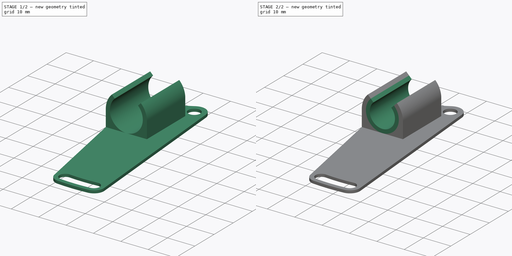
[diagram: build sequence overview — one tinted view per stage of 2, left to right]
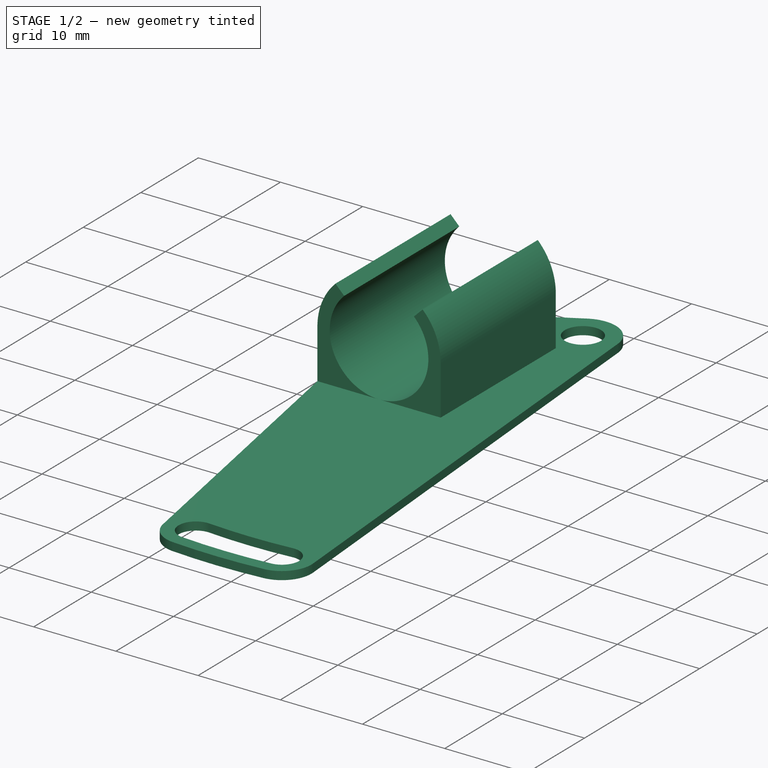
[diagram: stage 1 of 2 — iso view after this stage's code; geometry added in this stage tinted green]
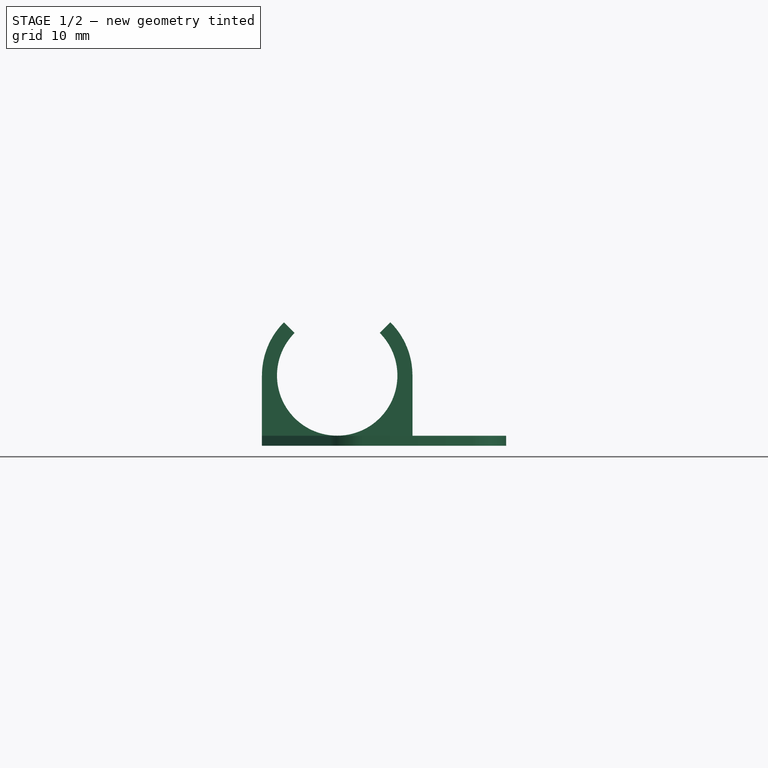
[diagram: stage 1 of 2 — front view after this stage's code; geometry added in this stage tinted green]
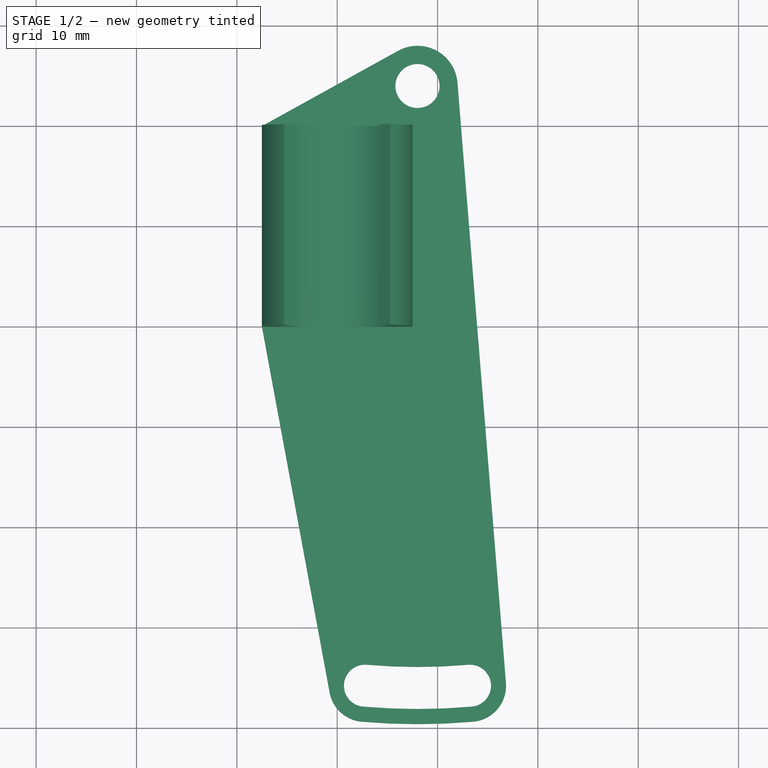
[diagram: stage 1 of 2 — top view after this stage's code; geometry added in this stage tinted green]
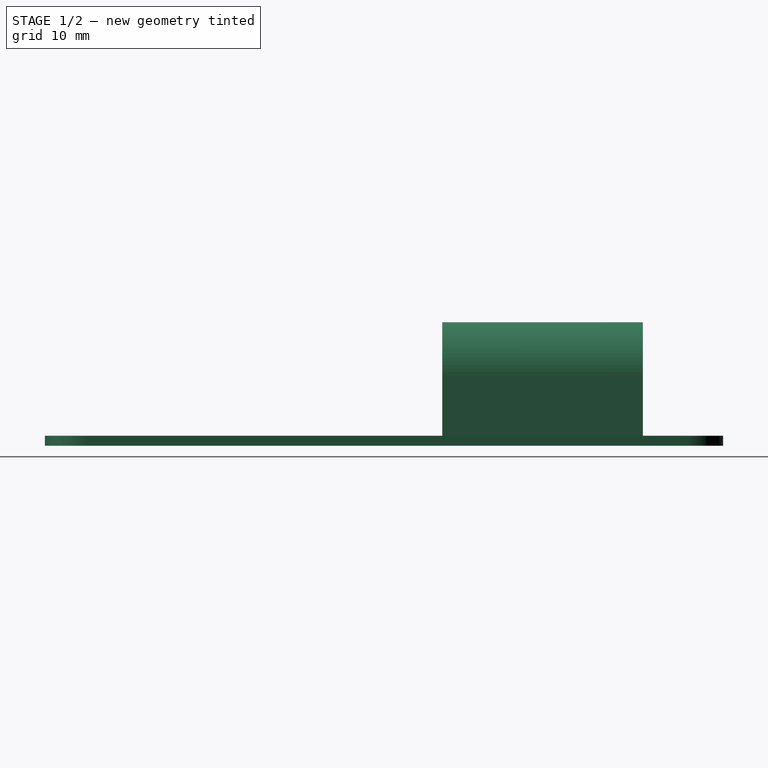
[diagram: stage 1 of 2 — right view after this stage's code; geometry added in this stage tinted green]
FCSTD DOCUMENT  (FreeCAD 0.16R6698 (Git))
Label: BetterLaserSideMount
License: All rights reserved
LicenseURL: http://en.wikipedia.org/wiki/All_rights_reserved
objects: Sketcher::SketchObject×3, PartDesign::Pad×3
note: 9 computed .brp shape members not serialized (recipe doc carries the construction recipe); baked Part::Feature solids carry a one-line shape summary decoded from their .brp

FEATURE [Sketcher::SketchObject] Sketch
  Placement = pos=(0,0,0) rot=(1,0,0;1.5708rad)
  sketch-geometry (9):
    g0: LineSegment StartX=-7.5 StartY=7.00002 StartZ=0 EndX=-7.5 EndY=0 EndZ=0
    g1: LineSegment StartX=-7.5 StartY=0 StartZ=0 EndX=7.5 EndY=0 EndZ=0
    g2: LineSegment StartX=7.5 StartY=0 StartZ=0 EndX=7.5 EndY=7.00002 EndZ=0
    g3: GeomPoint [constr] X=0 Y=7 Z=0
    g4: ArcOfCircle CenterX=0 CenterY=7 CenterZ=0 NormalX=0 NormalY=0 NormalZ=1 Radius=7.5 StartAngle=2.35619 EndAngle=3.14159
    g5: ArcOfCircle CenterX=0 CenterY=7 CenterZ=0 NormalX=0 NormalY=0 NormalZ=1 Radius=7.5 StartAngle=3.0339e-06 EndAngle=0.785398
    g6: ArcOfCircle CenterX=0 CenterY=7 CenterZ=0 NormalX=0 NormalY=0 NormalZ=1 Radius=6 StartAngle=2.35619 EndAngle=7.06858
    g7: LineSegment StartX=-4.24264 StartY=11.2426 StartZ=0 EndX=-5.3033 EndY=12.3033 EndZ=0
    g8: LineSegment StartX=4.24264 StartY=11.2426 StartZ=0 EndX=5.3033 EndY=12.3033 EndZ=0
  constraints (26):
    c: PointOnObject(g0,g-1)
    c: Vertical(g0)
    c: Coincident(g1,g0)
    c: Horizontal(g1)
    c: Coincident(g2,g1)
    c: Vertical(g2)
    c: PointOnObject(g3,g-2)
    c: Coincident(g4,g3)
    c: Coincident(g4,g0)
    c: Coincident(g5,g3)
    c: Coincident(g5,g2)
    c: Coincident(g6,g3)
    c: Radius(g6) = 6
    c: Coincident(g7,g6)
    c: Coincident(g7,g4)
    c: Coincident(g8,g6)
    c: Coincident(g8,g5)
    c: Perpendicular(g6,g8)
    c: Perpendicular(g6,g7)
    c: Equal(g8,g7)
    c: Distance(g7) = 1.5
    c: Tangent(g0,g4)
    c: Tangent(g2,g5)
    c: Symmetric(g6,g6,g-2)
    c: DistanceY(g-1,g3) = 7
    c: Angle(g8,g7) = 1.5708
FEATURE [PartDesign::Pad] Pad
  Length = 20
  Length2 = 100
  Placement = pos=(0,0,0) rot=(1,0,0;1.5708rad)
  Sketch = -> Sketch
  Type = 0
FEATURE [Sketcher::SketchObject] Sketch001
  ExternalGeometry = -> [Pad]
  Placement = pos=(0,0,0) rot=(1,0,0;3.14159rad)
  Support = -> Pad [Face4]
  sketch-geometry (17):
    g0: Circle CenterX=8 CenterY=-4 CenterZ=0 NormalX=0 NormalY=0 NormalZ=1 Radius=2.2
    g1: ArcOfCircle CenterX=8 CenterY=-4 CenterZ=0 NormalX=0 NormalY=0 NormalZ=1 Radius=57.9 StartAngle=1.48353 EndAngle=1.65806
    g2: ArcOfCircle CenterX=8 CenterY=-4 CenterZ=0 NormalX=0 NormalY=0 NormalZ=1 Radius=62.1 StartAngle=1.48353 EndAngle=1.65806
    g3: ArcOfCircle CenterX=2.77066 CenterY=55.7717 CenterZ=0 NormalX=0 NormalY=0 NormalZ=1 Radius=2.1 StartAngle=1.65806 EndAngle=4.79966
    g4: ArcOfCircle CenterX=13.2293 CenterY=55.7717 CenterZ=0 NormalX=0 NormalY=0 NormalZ=1 Radius=2.1 StartAngle=4.62512 EndAngle=7.76672
    g5: Circle [constr] CenterX=8 CenterY=-4 CenterZ=0 NormalX=0 NormalY=0 NormalZ=1 Radius=4
    g6: LineSegment [constr] StartX=8 StartY=-4 StartZ=0 EndX=8 EndY=56 EndZ=0
    g7: LineSegment [constr] StartX=2.77066 StartY=55.7717 StartZ=0 EndX=8 EndY=-4 EndZ=0
    g8: LineSegment [constr] StartX=8 StartY=-4 StartZ=0 EndX=13.2293 EndY=55.7717 EndZ=0
    g9: ArcOfCircle CenterX=8 CenterY=-4 CenterZ=0 NormalX=0 NormalY=0 NormalZ=1 Radius=63.6 StartAngle=1.48353 EndAngle=1.65806
    g10: LineSegment StartX=-7.5 StartY=20 StartZ=0 EndX=-0.718231 EndY=56.6592 EndZ=0
    g11: ArcOfCircle CenterX=2.77066 CenterY=55.7717 CenterZ=0 NormalX=0 NormalY=0 NormalZ=1 Radius=3.6 StartAngle=1.65806 EndAngle=2.89249
    g12: ArcOfCircle CenterX=8 CenterY=-4 CenterZ=0 NormalX=0 NormalY=0 NormalZ=1 Radius=4 StartAngle=4.20728 EndAngle=6.20259
    g13: LineSegment StartX=6.06439 StartY=-7.50049 StartZ=0 EndX=-7.5 EndY=0 EndZ=0
    g14: LineSegment StartX=11.987 StartY=-4.32205 StartZ=0 EndX=16.8177 EndY=55.4818 EndZ=0
    g15: ArcOfCircle CenterX=13.2293 CenterY=55.7717 CenterZ=0 NormalX=0 NormalY=0 NormalZ=1 Radius=3.6 StartAngle=6.20259 EndAngle=7.76672
    g16: LineSegment StartX=-7.5 StartY=0 StartZ=0 EndX=-7.5 EndY=20 EndZ=0
  constraints (45):
    c: Radius(g0) = 2.2
    c: DistanceX(g-1,g0) = 8
    c: Coincident(g1,g0)
    c: Coincident(g2,g0)
    c: Radius(g1) = 57.9
    c: Radius(g2) = 62.1
    c: Coincident(g3,g1)
    c: Coincident(g2,g3)
    c: Coincident(g4,g2)
    c: Coincident(g4,g1)
    c: Tangent(g3,g1)
    c: Tangent(g3,g2)
    c: Tangent(g1,g4)
    c: Tangent(g2,g4)
    c: Coincident(g5,g0)
    c: Radius(g5) = 4
    c: Tangent(g5,g-1)
    c: Coincident(g6,g0)
    c: Vertical(g6)
    c: Distance(g6) = 60
    c: Symmetric(g3,g4,g6)
    c: Coincident(g7,g3)
    c: Coincident(g7,g0)
    c: Coincident(g8,g0)
    c: Coincident(g8,g4)
    c: Angle(g8,g7) = 0.174533
    c: Coincident(g9,g0)
    c: PointOnObject(g9,g7)
    c: PointOnObject(g9,g8)
    c: Radius(g9) = 63.6
    c: Coincident(g10,g-5)
    c: Coincident(g11,g3)
    c: Coincident(g11,g9)
    c: Coincident(g10,g11)
    c: Coincident(g12,g0)
    c: Coincident(g13,g12)
    c: Coincident(g13,g-5)
    c: Tangent(g13,g12)
    c: Radius(g12) = 4
    c: Coincident(g14,g12)
    c: Coincident(g15,g4)
    c: Coincident(g15,g9)
    c: Coincident(g15,g14)
    c: Coincident(g16,g13)
    c: Coincident(g16,g10)
FEATURE [PartDesign::Pad] Pad001
  Length = 1
  Length2 = 100
  Placement = pos=(0,0,0) rot=(1,0,0;1.5708rad)
  Reversed = true
  Sketch = -> Sketch001
  Type = 0
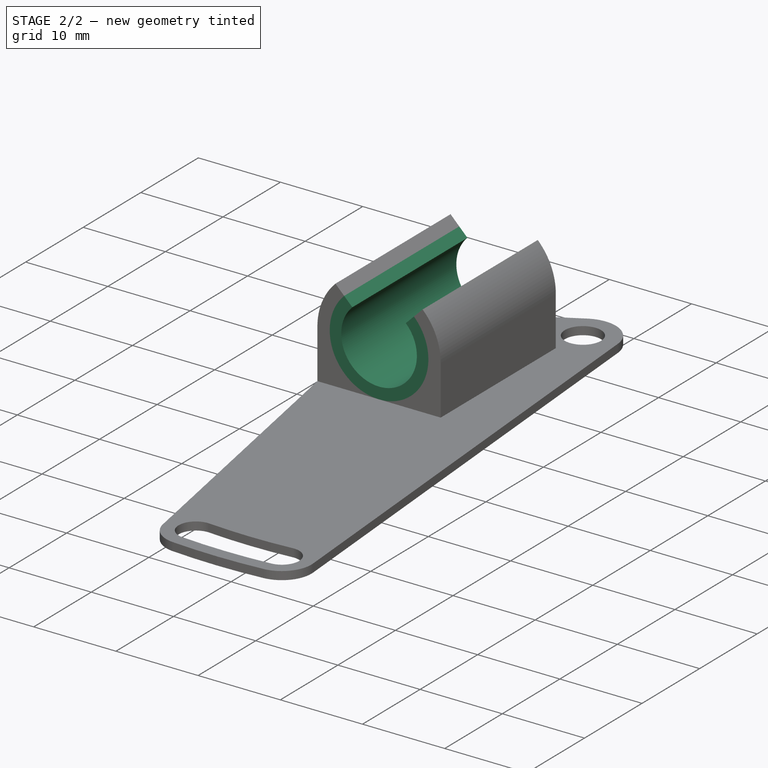
[diagram: stage 2 of 2 — iso view after this stage's code; geometry added in this stage tinted green]
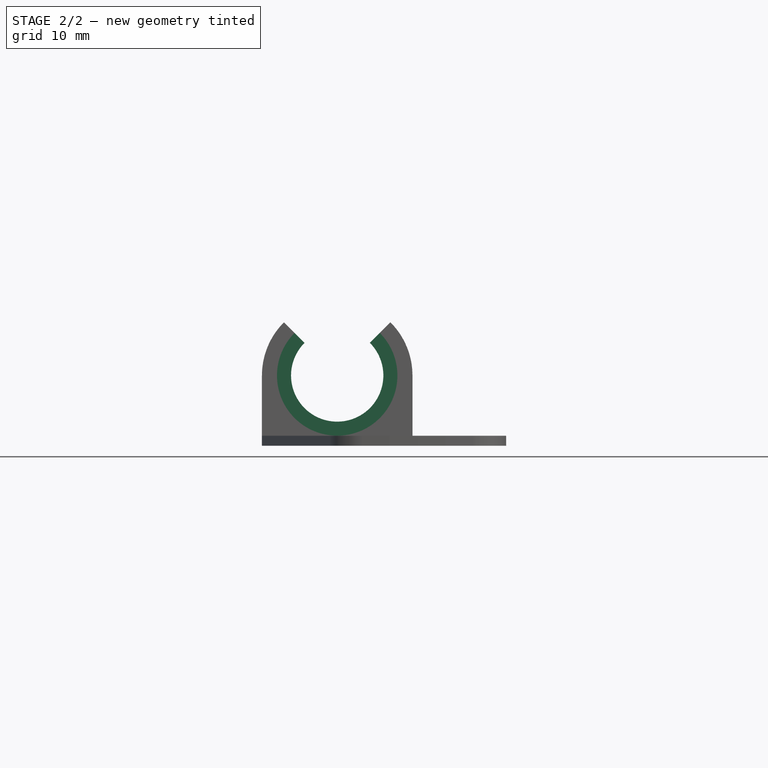
[diagram: stage 2 of 2 — front view after this stage's code; geometry added in this stage tinted green]
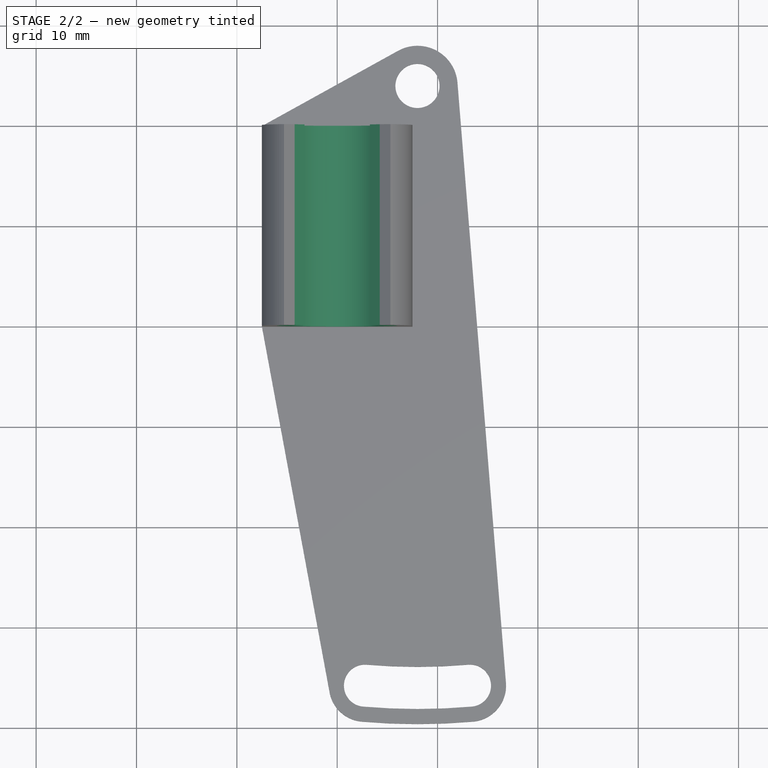
[diagram: stage 2 of 2 — top view after this stage's code; geometry added in this stage tinted green]
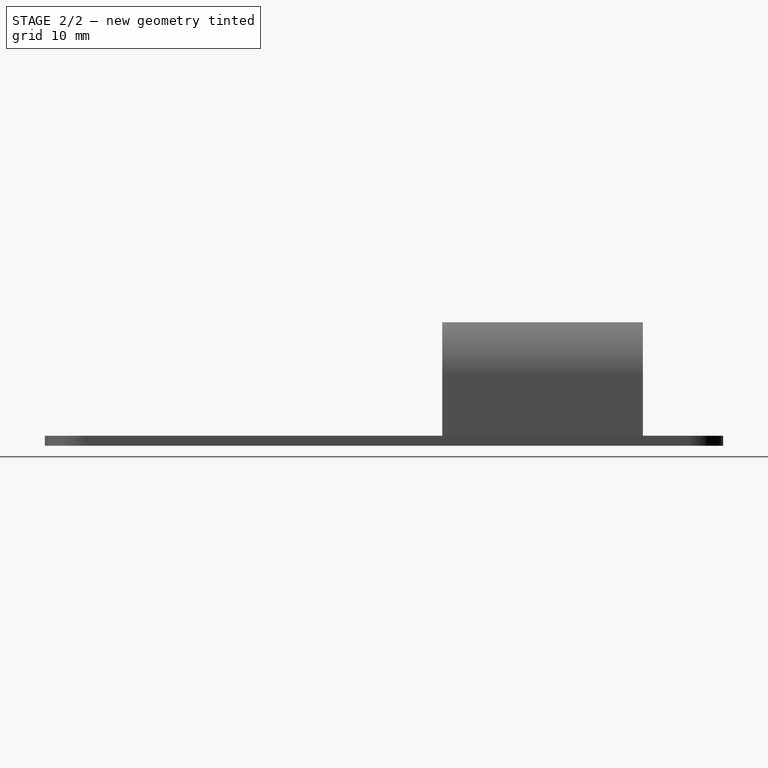
[diagram: stage 2 of 2 — right view after this stage's code; geometry added in this stage tinted green]
FEATURE [Sketcher::SketchObject] Sketch002
  ExternalGeometry = -> [Pad001]
  Placement = pos=(0,-20,0) rot=(1,0,0;1.5708rad)
  Support = -> Pad001 [Face5]
  sketch-geometry (4):
    g0: ArcOfCircle CenterX=0 CenterY=7 CenterZ=0 NormalX=0 NormalY=0 NormalZ=1 Radius=4.6 StartAngle=2.35619 EndAngle=7.06858
    g1: LineSegment StartX=3.25269 StartY=10.2527 StartZ=0 EndX=4.24264 EndY=11.2426 EndZ=0
    g2: LineSegment StartX=-3.25269 StartY=10.2527 StartZ=0 EndX=-4.24264 EndY=11.2426 EndZ=0
    g3: ArcOfCircle CenterX=0 CenterY=7 CenterZ=0 NormalX=0 NormalY=0 NormalZ=1 Radius=6 StartAngle=2.35619 EndAngle=7.06858
  constraints (12):
    c: Coincident(g0,g-3)
    c: Radius(g0) = 4.6
    c: Coincident(g1,g0)
    c: PointOnObject(g2,g0)
    c: Coincident(g2,g-4)
    c: Coincident(g2,g0)
    c: Perpendicular(g0,g2)
    c: Perpendicular(g0,g1)
    c: Coincident(g-3,g1)
    c: Coincident(g3,g1)
    c: Coincident(g3,g2)
    c: Coincident(g3,g0)
FEATURE [PartDesign::Pad] Pad002
  Length = 20
  Length2 = 100
  Placement = pos=(0,0,0) rot=(1,0,0;1.5708rad)
  Reversed = true
  Sketch = -> Sketch002
  Type = 0
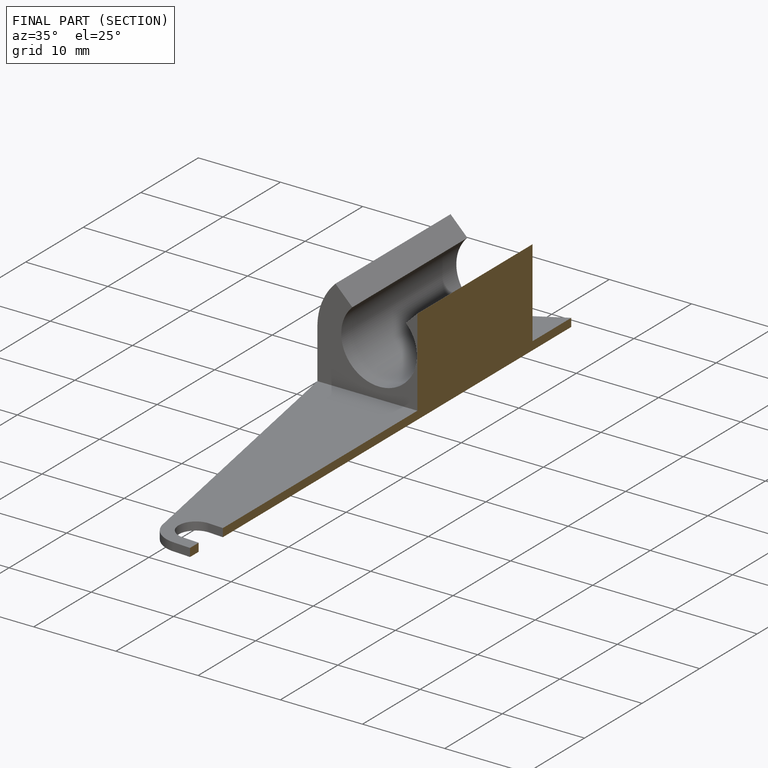
[diagram: finished part — half-section view (interior)]
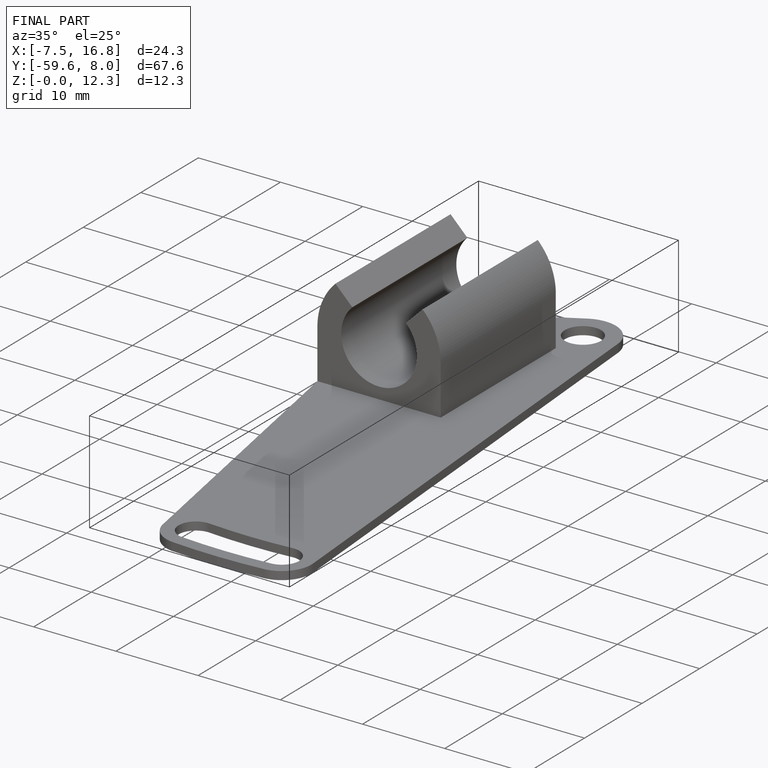
[diagram: finished part — iso view with bounding-box wireframe]
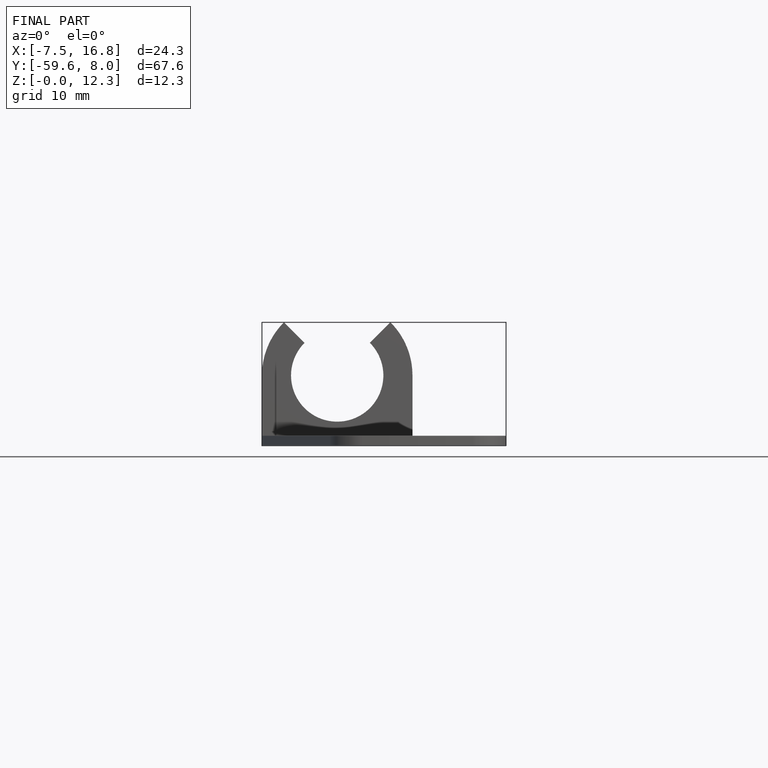
[diagram: finished part — front view with bounding-box wireframe]
